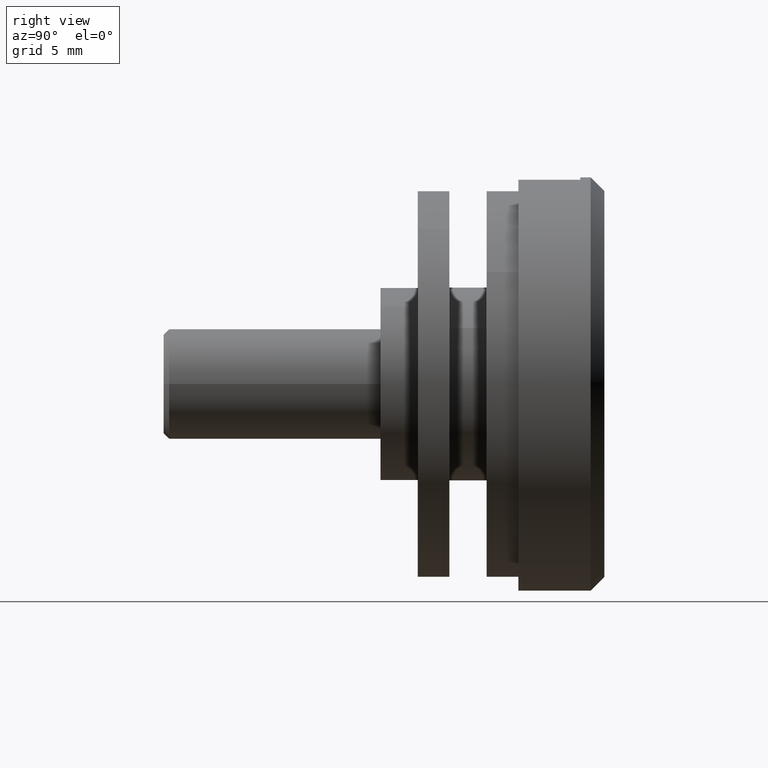
[diagram: clean part render]
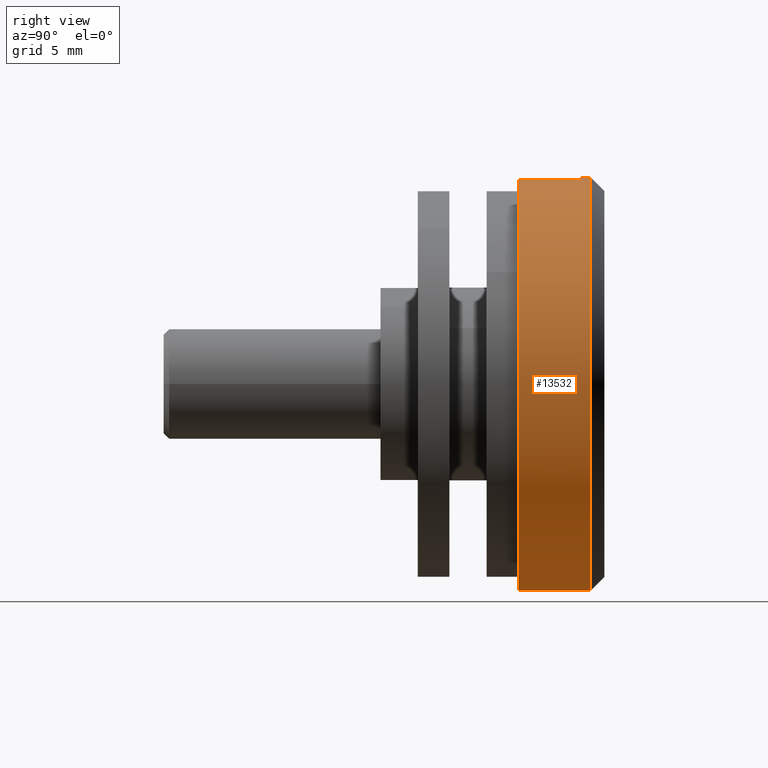
[diagram: same view with one face highlighted and labeled with its STEP entity id]
A machine part, right view. The second image highlights one B-rep face of the part: STEP entity #13532.
In plain terms, the highlighted cylindrical surface (partial cylindrical patch) has radius 15 mm, axis along (-0, -1, -0).
Its self-contained STEP definition (entity closure, byte-faithful):
#14 = VECTOR ( 'NONE', #13602, 1000.000000000000000 ) ;
#52 = CARTESIAN_POINT ( 'NONE',  ( 1.836970198721029600E-015, 9.999999999999998200, 15.00000000000000000 ) ) ;
#144 = DIRECTION ( 'NONE',  ( 0.0000000000000000000, 0.0000000000000000000, 1.000000000000000000 ) ) ;
#287 = CIRCLE ( 'NONE', #8167, 14.99999999999973900 ) ;
#389 = DIRECTION ( 'NONE',  ( -0.0000000000000000000, -1.000000000000000000, -0.0000000000000000000 ) ) ;
#530 = DIRECTION ( 'NONE',  ( 0.0000000000000000000, 0.0000000000000000000, -1.000000000000000000 ) ) ;
#564 = CARTESIAN_POINT ( 'NONE',  ( 2.250000000000000000, 9.249999999999998200, 14.83028994996389100 ) ) ;
#1399 = CARTESIAN_POINT ( 'NONE',  ( 1.836970198721030000E-015, 9.249999999999998200, 15.00000000000000400 ) ) ;
#1476 = VERTEX_POINT ( 'NONE', #9561 ) ;
#1478 = CARTESIAN_POINT ( 'NONE',  ( 0.0000000000000000000, 4.749999999999999100, 0.0000000000000000000 ) ) ;
#1970 = ORIENTED_EDGE ( 'NONE', *, *, #13653, .F. ) ;
#2018 = VERTEX_POINT ( 'NONE', #3360 ) ;
#2323 = AXIS2_PLACEMENT_3D ( 'NONE', #11603, #9348, #2897 ) ;
#2357 = VERTEX_POINT ( 'NONE', #52 ) ;
#2461 = VERTEX_POINT ( 'NONE', #9349 ) ;
#2708 = EDGE_LOOP ( 'NONE', ( #6248, #7672, #3976, #6612, #12971, #1970 ) ) ;
#2768 = DIRECTION ( 'NONE',  ( 0.0000000000000000000, 0.0000000000000000000, -1.000000000000000000 ) ) ;
#2897 = DIRECTION ( 'NONE',  ( 0.0000000000000000000, 0.0000000000000000000, -1.000000000000000000 ) ) ;
#3360 = CARTESIAN_POINT ( 'NONE',  ( 0.0000000000000000000, 9.999999999999998200, -15.00000000000000000 ) ) ;
#3680 = EDGE_CURVE ( 'NONE', #2018, #2357, #8534, .T. ) ;
#3976 = ORIENTED_EDGE ( 'NONE', *, *, #4354, .F. ) ;
#4354 = EDGE_CURVE ( 'NONE', #1476, #9940, #287, .T. ) ;
#4432 = CARTESIAN_POINT ( 'NONE',  ( 0.0000000000000000000, 9.249999999999998200, 2.636779683484746800E-013 ) ) ;
#5550 = VERTEX_POINT ( 'NONE', #12290 ) ;
#6248 = ORIENTED_EDGE ( 'NONE', *, *, #3680, .T. ) ;
#6612 = ORIENTED_EDGE ( 'NONE', *, *, #12744, .T. ) ;
#6654 = DIRECTION ( 'NONE',  ( 0.0000000000000000000, -1.000000000000000000, 0.0000000000000000000 ) ) ;
#7393 = CARTESIAN_POINT ( 'NONE',  ( 0.0000000000000000000, 0.0000000000000000000, -15.00000000000000000 ) ) ;
#7672 = ORIENTED_EDGE ( 'NONE', *, *, #12654, .T. ) ;
#7990 = EDGE_CURVE ( 'NONE', #5550, #2461, #8905, .T. ) ;
#8167 = AXIS2_PLACEMENT_3D ( 'NONE', #4432, #6654, #144 ) ;
#8352 = VECTOR ( 'NONE', #10567, 1000.000000000000000 ) ;
#8534 = CIRCLE ( 'NONE', #2323, 15.00000000000000000 ) ;
#8905 = CIRCLE ( 'NONE', #11271, 15.00000000000000000 ) ;
#9233 = CYLINDRICAL_SURFACE ( 'NONE', #11015, 15.00000000000000000 ) ;
#9348 = DIRECTION ( 'NONE',  ( -0.0000000000000000000, -1.000000000000000000, -0.0000000000000000000 ) ) ;
#9349 = CARTESIAN_POINT ( 'NONE',  ( 2.250000000000000000, 4.749999999999999100, 14.83028994996389100 ) ) ;
#9407 = LINE ( 'NONE', #564, #14 ) ;
#9561 = CARTESIAN_POINT ( 'NONE',  ( 2.250000000000000000, 9.249999999999998200, 14.83028994996389100 ) ) ;
#9720 = FACE_OUTER_BOUND ( 'NONE', #2708, .T. ) ;
#9940 = VERTEX_POINT ( 'NONE', #1399 ) ;
#10054 = CARTESIAN_POINT ( 'NONE',  ( 1.836970198721029600E-015, 0.0000000000000000000, 15.00000000000000000 ) ) ;
#10567 = DIRECTION ( 'NONE',  ( -0.0000000000000000000, -1.000000000000000000, -0.0000000000000000000 ) ) ;
#11015 = AXIS2_PLACEMENT_3D ( 'NONE', #11566, #11653, #2768 ) ;
#11113 = LINE ( 'NONE', #7393, #8352 ) ;
#11125 = VECTOR ( 'NONE', #12465, 1000.000000000000000 ) ;
#11271 = AXIS2_PLACEMENT_3D ( 'NONE', #1478, #389, #530 ) ;
#11566 = CARTESIAN_POINT ( 'NONE',  ( 0.0000000000000000000, 0.0000000000000000000, 0.0000000000000000000 ) ) ;
#11603 = CARTESIAN_POINT ( 'NONE',  ( 0.0000000000000000000, 9.999999999999998200, 0.0000000000000000000 ) ) ;
#11653 = DIRECTION ( 'NONE',  ( -0.0000000000000000000, -1.000000000000000000, -0.0000000000000000000 ) ) ;
#12290 = CARTESIAN_POINT ( 'NONE',  ( 0.0000000000000000000, 4.749999999999999100, -15.00000000000000000 ) ) ;
#12465 = DIRECTION ( 'NONE',  ( -0.0000000000000000000, -1.000000000000000000, -0.0000000000000000000 ) ) ;
#12654 = EDGE_CURVE ( 'NONE', #2357, #9940, #12673, .T. ) ;
#12673 = LINE ( 'NONE', #10054, #11125 ) ;
#12744 = EDGE_CURVE ( 'NONE', #1476, #2461, #9407, .T. ) ;
#12971 = ORIENTED_EDGE ( 'NONE', *, *, #7990, .F. ) ;
#13532 = ADVANCED_FACE ( 'NONE', ( #9720 ), #9233, .T. ) ;
#13602 = DIRECTION ( 'NONE',  ( -0.0000000000000000000, -1.000000000000000000, -0.0000000000000000000 ) ) ;
#13653 = EDGE_CURVE ( 'NONE', #2018, #5550, #11113, .T. ) ;